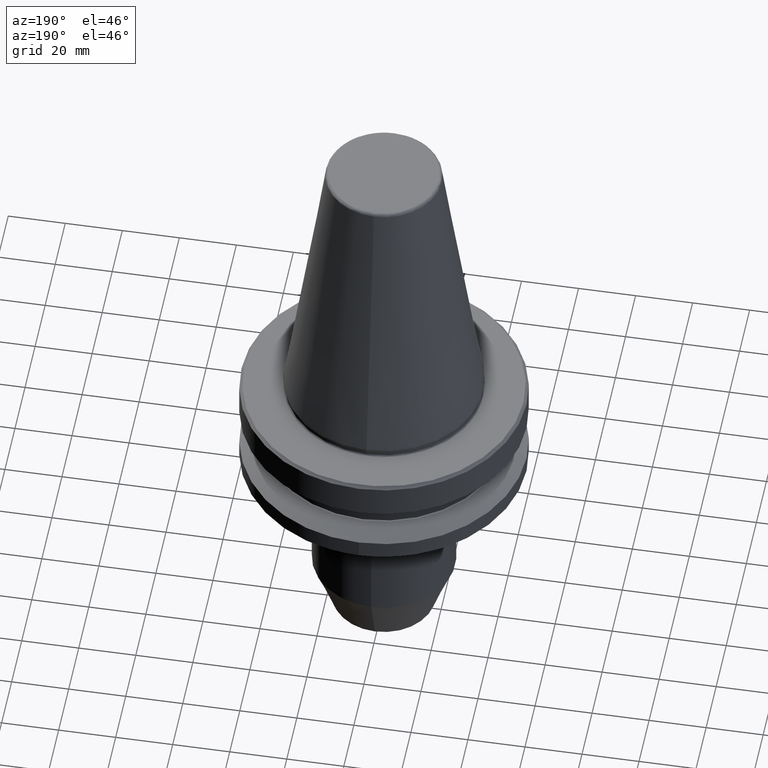
[diagram: clean part render]
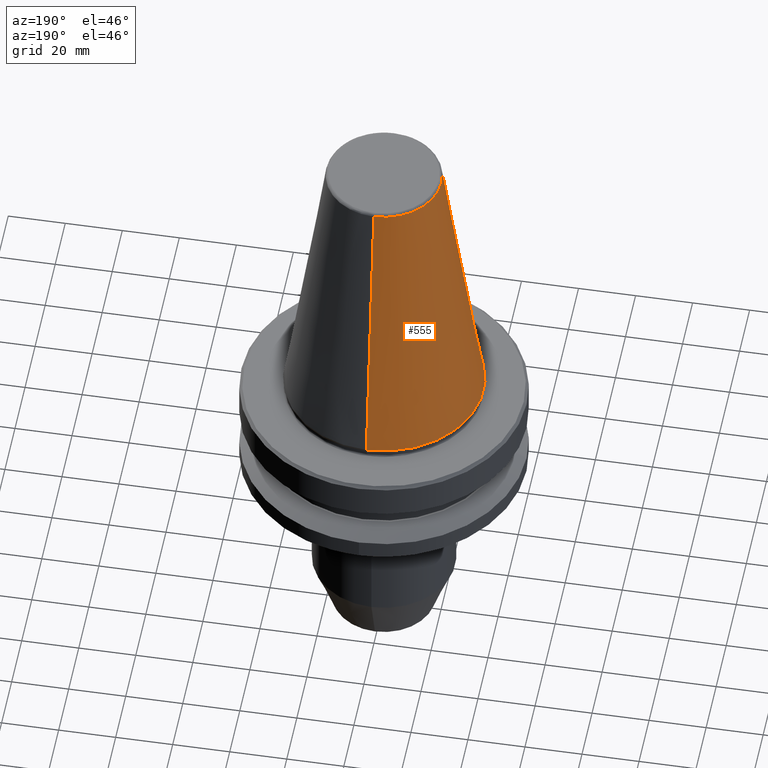
[diagram: same view with one face highlighted and labeled with its STEP entity id]
A machine part, auxiliary view. The second image highlights one B-rep face of the part: STEP entity #555.
In plain terms, the highlighted conical surface has half-angle 8.297 deg.
Its self-contained STEP definition (entity closure, byte-faithful):
#63 = VECTOR ( 'NONE', #1506, 1000.000000000000200 ) ;
#138 = EDGE_CURVE ( 'NONE', #228, #1235, #1089, .T. ) ;
#158 = AXIS2_PLACEMENT_3D ( 'NONE', #758, #970, #759 ) ;
#222 = CARTESIAN_POINT ( 'NONE',  ( -20.20381605193965100, -6.803238703374329800E-010, 100.9443082269759200 ) ) ;
#228 = VERTEX_POINT ( 'NONE', #806 ) ;
#277 = LINE ( 'NONE', #665, #1128 ) ;
#286 = AXIS2_PLACEMENT_3D ( 'NONE', #617, #615, #612 ) ;
#314 = VERTEX_POINT ( 'NONE', #1141 ) ;
#320 = ORIENTED_EDGE ( 'NONE', *, *, #138, .T. ) ;
#385 = ORIENTED_EDGE ( 'NONE', *, *, #691, .T. ) ;
#395 = AXIS2_PLACEMENT_3D ( 'NONE', #725, #740, #801 ) ;
#411 = EDGE_CURVE ( 'NONE', #314, #733, #1528, .T. ) ;
#484 = LINE ( 'NONE', #1509, #63 ) ;
#502 = CARTESIAN_POINT ( 'NONE',  ( 0.0000000000000000000, 20.20381605199999300, 100.9443082270000600 ) ) ;
#555 = ADVANCED_FACE ( 'NONE', ( #1236 ), #1462, .T. ) ;
#576 = CARTESIAN_POINT ( 'NONE',  ( 4.277078946022131700E-015, -34.92500000000004000, 1.199480677166284000E-014 ) ) ;
#580 = AXIS2_PLACEMENT_3D ( 'NONE', #1042, #762, #1114 ) ;
#583 = ORIENTED_EDGE ( 'NONE', *, *, #603, .F. ) ;
#603 = EDGE_CURVE ( 'NONE', #228, #733, #277, .T. ) ;
#612 = DIRECTION ( 'NONE',  ( 0.0000000000000000000, 1.000000000000000000, 0.0000000000000000000 ) ) ;
#615 = DIRECTION ( 'NONE',  ( 0.0000000000000000000, -3.434447178715200600E-016, -1.000000000000000000 ) ) ;
#617 = CARTESIAN_POINT ( 'NONE',  ( 0.0000000000000000000, 1.848892746611746400E-029, 100.9443082270000600 ) ) ;
#665 = CARTESIAN_POINT ( 'NONE',  ( 4.277078946022131700E-015, -34.92500000000004000, 1.011182573551119800E-014 ) ) ;
#666 = DIRECTION ( 'NONE',  ( 1.767266086083724100E-017, -0.1443082272630906700, -0.9895327864927892000 ) ) ;
#691 = EDGE_CURVE ( 'NONE', #1235, #817, #1332, .T. ) ;
#725 = CARTESIAN_POINT ( 'NONE',  ( 0.0000000000000000000, 1.848892746611746400E-029, 100.9443082270000600 ) ) ;
#733 = VERTEX_POINT ( 'NONE', #576 ) ;
#740 = DIRECTION ( 'NONE',  ( 0.0000000000000000000, -3.434447178715200600E-016, -1.000000000000000000 ) ) ;
#758 = CARTESIAN_POINT ( 'NONE',  ( 0.0000000000000000000, -3.469446951953614200E-014, -1.882981036151629500E-015 ) ) ;
#759 = DIRECTION ( 'NONE',  ( 0.0000000000000000000, 1.000000000000000000, -3.434447178715197200E-016 ) ) ;
#762 = DIRECTION ( 'NONE',  ( -0.0000000000000000000, 3.434447178715200600E-016, 1.000000000000000000 ) ) ;
#801 = DIRECTION ( 'NONE',  ( 0.0000000000000000000, 1.000000000000000000, 0.0000000000000000000 ) ) ;
#806 = CARTESIAN_POINT ( 'NONE',  ( 3.375666405943206000E-015, -20.20381605199999000, 100.9443082270000600 ) ) ;
#817 = VERTEX_POINT ( 'NONE', #502 ) ;
#970 = DIRECTION ( 'NONE',  ( 0.0000000000000000000, -3.434447178715197200E-016, -1.000000000000000000 ) ) ;
#1042 = CARTESIAN_POINT ( 'NONE',  ( 0.0000000000000000000, -3.466878945975778700E-014, 0.0000000000000000000 ) ) ;
#1086 = EDGE_LOOP ( 'NONE', ( #583, #320, #385, #1397, #1154 ) ) ;
#1089 = CIRCLE ( 'NONE', #395, 20.20381605199999000 ) ;
#1114 = DIRECTION ( 'NONE',  ( 0.0000000000000000000, 1.000000000000000000, -3.973597081693473100E-016 ) ) ;
#1128 = VECTOR ( 'NONE', #666, 1000.000000000000100 ) ;
#1141 = CARTESIAN_POINT ( 'NONE',  ( 0.0000000000000000000, 34.92499999999996900, -1.199480677166284000E-014 ) ) ;
#1154 = ORIENTED_EDGE ( 'NONE', *, *, #411, .T. ) ;
#1235 = VERTEX_POINT ( 'NONE', #222 ) ;
#1236 = FACE_OUTER_BOUND ( 'NONE', #1086, .T. ) ;
#1332 = CIRCLE ( 'NONE', #286, 20.20381605199999300 ) ;
#1397 = ORIENTED_EDGE ( 'NONE', *, *, #1516, .T. ) ;
#1462 = CONICAL_SURFACE ( 'NONE', #158, 34.92500000000000400, 0.1448138465431578200 ) ;
#1506 = DIRECTION ( 'NONE',  ( 0.0000000000000000000, 0.1443082272630900300, -0.9895327864927893100 ) ) ;
#1509 = CARTESIAN_POINT ( 'NONE',  ( 0.0000000000000000000, 34.92499999999996900, -1.387778780781445700E-014 ) ) ;
#1516 = EDGE_CURVE ( 'NONE', #817, #314, #484, .T. ) ;
#1528 = CIRCLE ( 'NONE', #580, 34.92500000000000400 ) ;